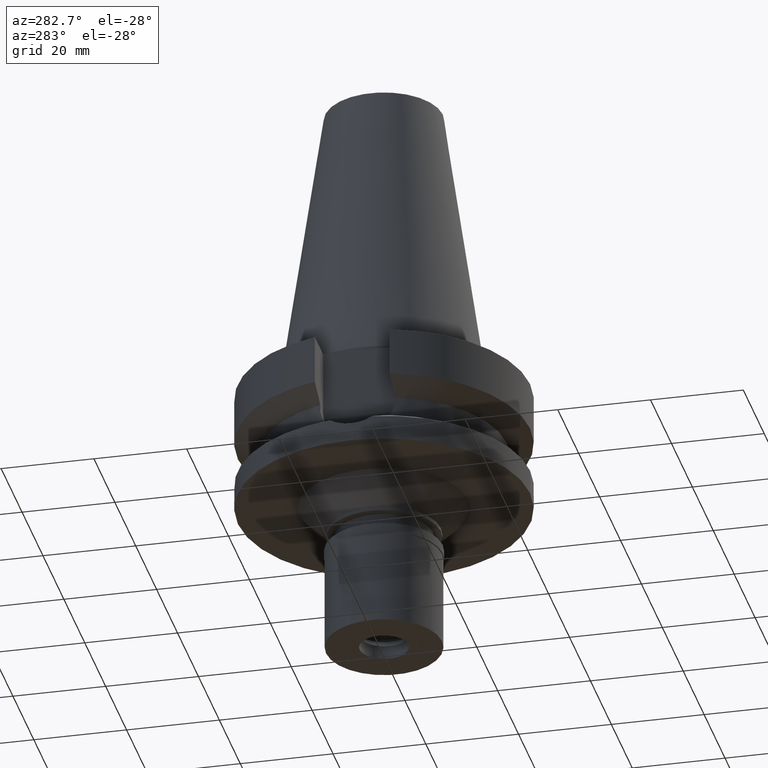
[diagram: clean part render]
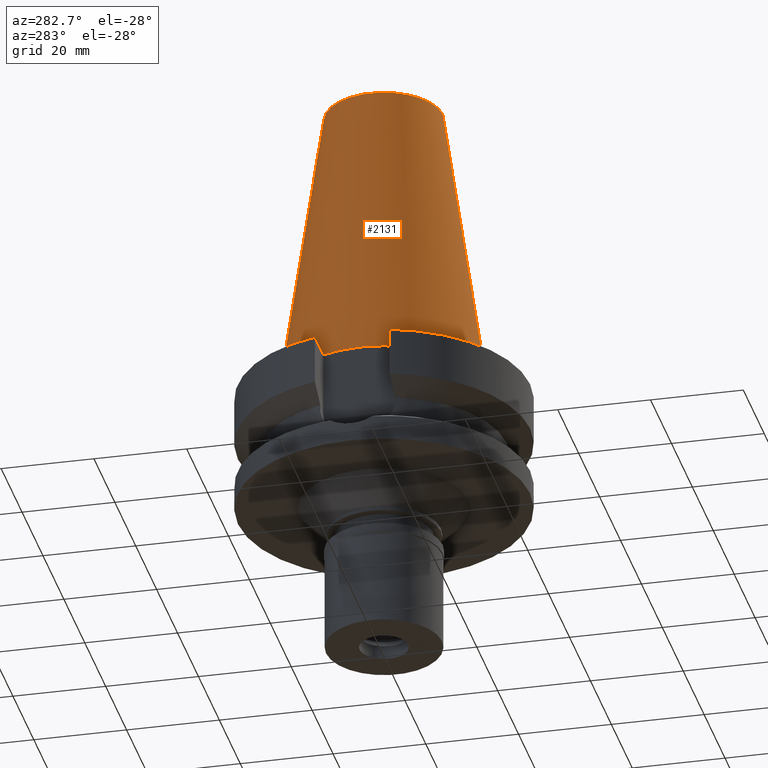
[diagram: same view with one face highlighted and labeled with its STEP entity id]
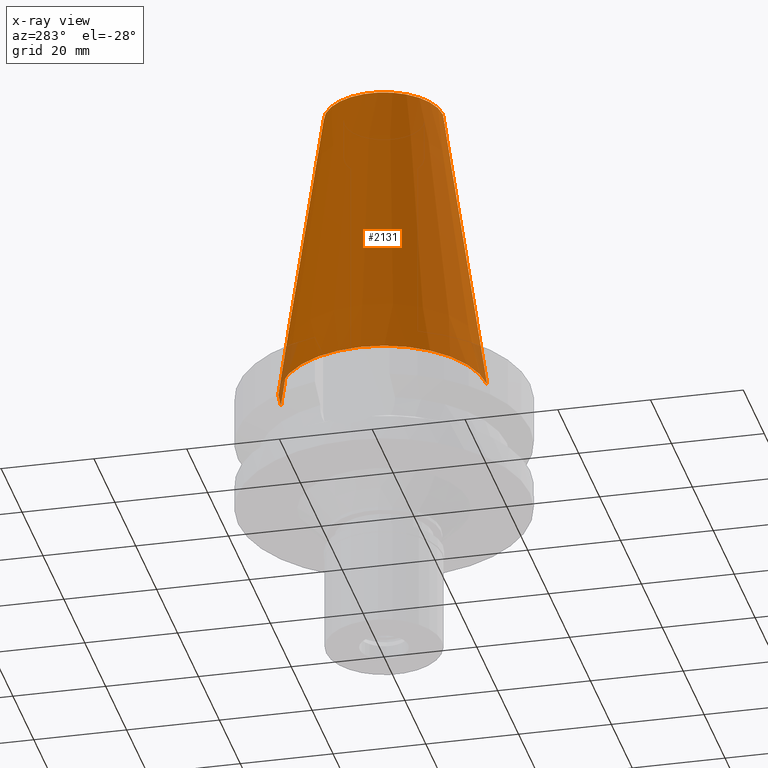
[diagram: x-ray of the same camera — body ghosted, the highlighted face saturated]
A machine part, auxiliary view. The second image highlights one B-rep face of the part: STEP entity #2131.
The next image is the same camera in x-ray: the body ghosted, the highlighted face saturated — about 2% of this face is hidden behind the body in this view.
In plain terms, the highlighted conical surface has half-angle 8.297 deg.
Its self-contained STEP definition (entity closure, byte-faithful):
#82 = DIRECTION ( 'NONE',  ( 0.0000000000000000000, 0.0000000000000000000, -1.000000000000000000 ) ) ;
#86 = EDGE_CURVE ( 'NONE', #1158, #2364, #1172, .T. ) ;
#188 = CARTESIAN_POINT ( 'NONE',  ( 0.0000000000000000000, 12.68766899429999917, 65.40000000000000568 ) ) ;
#335 = CARTESIAN_POINT ( 'NONE',  ( 0.0000000000000000000, 22.22500000000000142, -9.947598300640998705E-14 ) ) ;
#378 = VERTEX_POINT ( 'NONE', #335 ) ;
#837 = VECTOR ( 'NONE', #1140, 1000.000000000000114 ) ;
#924 = CARTESIAN_POINT ( 'NONE',  ( 0.0000000000000000000, 12.68766899429999917, 65.40000000000000568 ) ) ;
#933 = LINE ( 'NONE', #188, #837 ) ;
#1140 = DIRECTION ( 'NONE',  ( 0.0000000000000000000, 0.1443043893539925626, -0.9895333461855498891 ) ) ;
#1158 = VERTEX_POINT ( 'NONE', #2967 ) ;
#1172 = CIRCLE ( 'NONE', #1616, 12.68766899429999917 ) ;
#1238 = FACE_OUTER_BOUND ( 'NONE', #2209, .T. ) ;
#1242 = DIRECTION ( 'NONE',  ( 0.0000000000000000000, -1.000000000000000000, 0.0000000000000000000 ) ) ;
#1359 = VERTEX_POINT ( 'NONE', #2262 ) ;
#1376 = VECTOR ( 'NONE', #2695, 1000.000000000000114 ) ;
#1521 = CONICAL_SURFACE ( 'NONE', #2065, 17.45633449714999941, 0.1448099680379422438 ) ;
#1616 = AXIS2_PLACEMENT_3D ( 'NONE', #1978, #2216, #2017 ) ;
#1619 = AXIS2_PLACEMENT_3D ( 'NONE', #2005, #2937, #1242 ) ;
#1930 = DIRECTION ( 'NONE',  ( 0.0000000000000000000, -1.000000000000000000, 0.0000000000000000000 ) ) ;
#1978 = CARTESIAN_POINT ( 'NONE',  ( 0.0000000000000000000, 0.0000000000000000000, 65.40000000000000568 ) ) ;
#1997 = CIRCLE ( 'NONE', #1619, 22.22500000000000142 ) ;
#2005 = CARTESIAN_POINT ( 'NONE',  ( 0.0000000000000000000, 0.0000000000000000000, -2.273736754432000254E-13 ) ) ;
#2009 = ORIENTED_EDGE ( 'NONE', *, *, #86, .T. ) ;
#2017 = DIRECTION ( 'NONE',  ( 0.0000000000000000000, -1.000000000000000000, 0.0000000000000000000 ) ) ;
#2065 = AXIS2_PLACEMENT_3D ( 'NONE', #2377, #82, #1930 ) ;
#2131 = ADVANCED_FACE ( 'NONE', ( #1238 ), #1521, .T. ) ;
#2136 = ORIENTED_EDGE ( 'NONE', *, *, #2180, .F. ) ;
#2180 = EDGE_CURVE ( 'NONE', #1158, #1359, #2507, .T. ) ;
#2209 = EDGE_LOOP ( 'NONE', ( #2402, #2136, #2009, #2996 ) ) ;
#2216 = DIRECTION ( 'NONE',  ( 0.0000000000000000000, 0.0000000000000000000, -1.000000000000000000 ) ) ;
#2238 = CARTESIAN_POINT ( 'NONE',  ( 0.0000000000000000000, -12.68766899429999917, 65.40000000000000568 ) ) ;
#2262 = CARTESIAN_POINT ( 'NONE',  ( 0.0000000000000000000, -22.22500000000000142, -9.947598300640998705E-14 ) ) ;
#2364 = VERTEX_POINT ( 'NONE', #924 ) ;
#2377 = CARTESIAN_POINT ( 'NONE',  ( 0.0000000000000000000, 0.0000000000000000000, 32.70000000000000284 ) ) ;
#2402 = ORIENTED_EDGE ( 'NONE', *, *, #2603, .F. ) ;
#2507 = LINE ( 'NONE', #2238, #1376 ) ;
#2603 = EDGE_CURVE ( 'NONE', #1359, #378, #1997, .T. ) ;
#2684 = EDGE_CURVE ( 'NONE', #2364, #378, #933, .T. ) ;
#2695 = DIRECTION ( 'NONE',  ( 0.0000000000000000000, -0.1443043893539925626, -0.9895333461855498891 ) ) ;
#2937 = DIRECTION ( 'NONE',  ( 0.0000000000000000000, 0.0000000000000000000, -1.000000000000000000 ) ) ;
#2967 = CARTESIAN_POINT ( 'NONE',  ( 0.0000000000000000000, -12.68766899429999917, 65.40000000000000568 ) ) ;
#2996 = ORIENTED_EDGE ( 'NONE', *, *, #2684, .T. ) ;